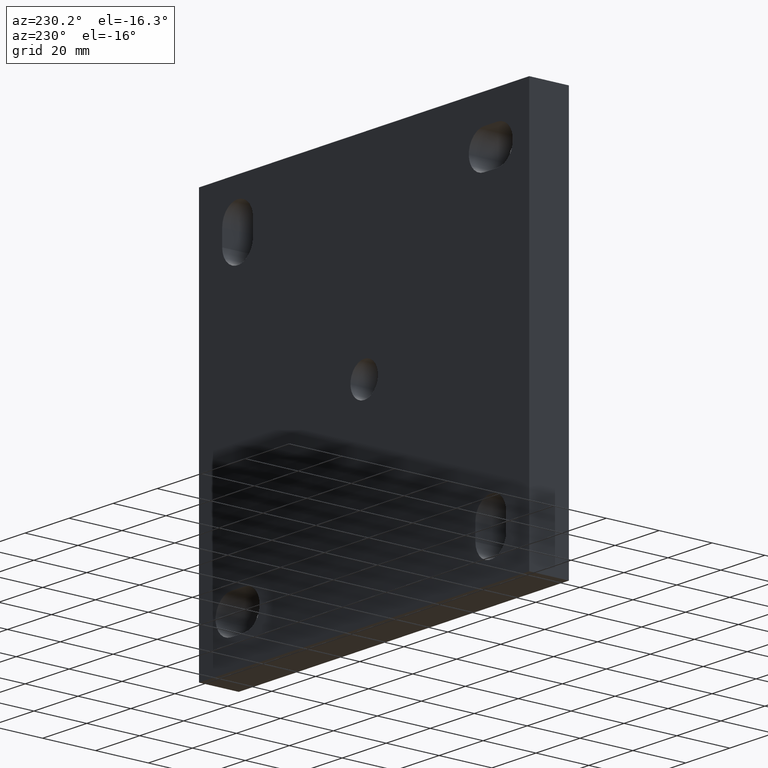
[diagram: clean part render]
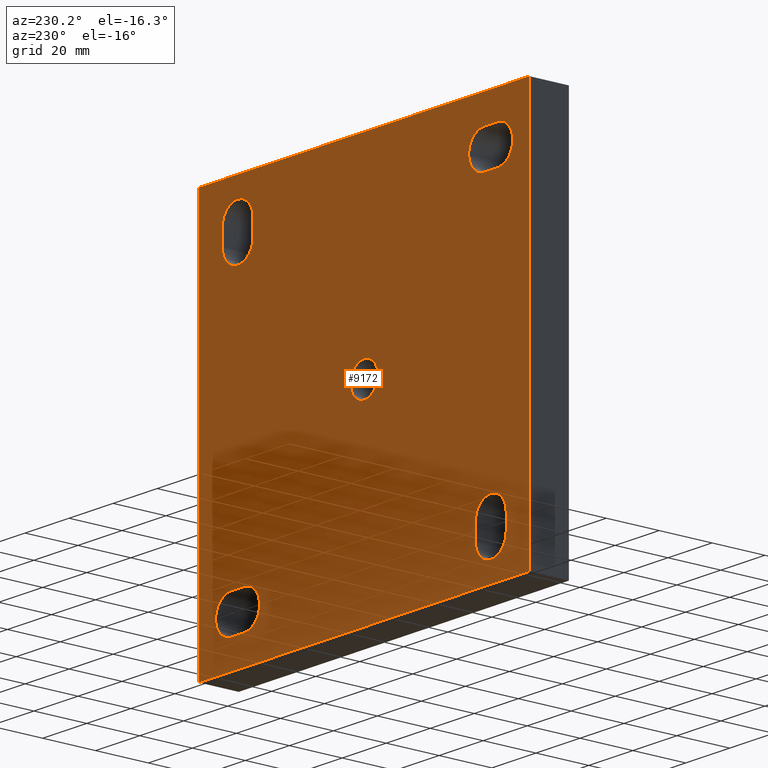
[diagram: same view with one face highlighted and labeled with its STEP entity id]
A machine part, auxiliary view. The second image highlights one B-rep face of the part: STEP entity #9172.
In plain terms, the highlighted planar face has unit normal (0, 1, 0).
Its self-contained STEP definition (entity closure, byte-faithful):
#42 = CARTESIAN_POINT ( 'NONE',  ( -64.49999999999998579, 15.00000000000000000, -60.50000000000006395 ) ) ;
#247 = VERTEX_POINT ( 'NONE', #8854 ) ;
#350 = AXIS2_PLACEMENT_3D ( 'NONE', #3906, #1746, #1791 ) ;
#384 = EDGE_CURVE ( 'NONE', #12676, #10742, #514, .T. ) ;
#432 = VECTOR ( 'NONE', #4711, 1000.000000000000000 ) ;
#512 = ORIENTED_EDGE ( 'NONE', *, *, #3276, .F. ) ;
#514 = CIRCLE ( 'NONE', #9266, 6.250000000000000000 ) ;
#552 = ORIENTED_EDGE ( 'NONE', *, *, #3141, .F. ) ;
#595 = EDGE_CURVE ( 'NONE', #8357, #5654, #4581, .T. ) ;
#635 = CARTESIAN_POINT ( 'NONE',  ( -64.49999999999998579, 15.00000000000000000, -60.50000000000006395 ) ) ;
#642 = LINE ( 'NONE', #4359, #8991 ) ;
#644 = DIRECTION ( 'NONE',  ( 0.000000000000000000, 1.000000000000000000, 0.000000000000000000 ) ) ;
#689 = CARTESIAN_POINT ( 'NONE',  ( -57.50000000000000711, 15.00000000000000000, -54.50000000000004263 ) ) ;
#770 = DIRECTION ( 'NONE',  ( 0.000000000000000000, 0.000000000000000000, 1.000000000000000000 ) ) ;
#825 = CARTESIAN_POINT ( 'NONE',  ( 74.99999999999998579, 15.00000000000000000, -74.99999999999998579 ) ) ;
#986 = FACE_OUTER_BOUND ( 'NONE', #1858, .T. ) ;
#1000 = CARTESIAN_POINT ( 'NONE',  ( -60.50000000000002132, 15.00000000000000000, 50.50000000000000000 ) ) ;
#1147 = DIRECTION ( 'NONE',  ( 0.000000000000000000, 0.000000000000000000, 1.000000000000000000 ) ) ;
#1294 = ORIENTED_EDGE ( 'NONE', *, *, #12868, .F. ) ;
#1378 = CARTESIAN_POINT ( 'NONE',  ( 7.654042494670957606E-16, 15.00000000000000000, -6.250000000000000000 ) ) ;
#1419 = DIRECTION ( 'NONE',  ( 0.000000000000000000, 0.000000000000000000, 1.000000000000000000 ) ) ;
#1451 = VERTEX_POINT ( 'NONE', #8279 ) ;
#1515 = VECTOR ( 'NONE', #9766, 1000.000000000000000 ) ;
#1610 = VECTOR ( 'NONE', #3838, 1000.000000000000000 ) ;
#1623 = CIRCLE ( 'NONE', #3732, 6.250000000000000000 ) ;
#1662 = VECTOR ( 'NONE', #13715, 1000.000000000000000 ) ;
#1746 = DIRECTION ( 'NONE',  ( 0.000000000000000000, 1.000000000000000000, 0.000000000000000000 ) ) ;
#1758 = ORIENTED_EDGE ( 'NONE', *, *, #3055, .F. ) ;
#1791 = DIRECTION ( 'NONE',  ( 0.000000000000000000, 0.000000000000000000, 1.000000000000000000 ) ) ;
#1802 = CIRCLE ( 'NONE', #2415, 6.999999999999992006 ) ;
#1817 = FACE_BOUND ( 'NONE', #8032, .T. ) ;
#1836 = EDGE_CURVE ( 'NONE', #9900, #4452, #2699, .T. ) ;
#1858 = EDGE_LOOP ( 'NONE', ( #2420, #7007, #4824, #5455 ) ) ;
#1873 = DIRECTION ( 'NONE',  ( 1.000000000000000000, 0.000000000000000000, 0.000000000000000000 ) ) ;
#2078 = DIRECTION ( 'NONE',  ( 0.000000000000000000, 1.000000000000000000, 0.000000000000000000 ) ) ;
#2123 = ORIENTED_EDGE ( 'NONE', *, *, #5261, .F. ) ;
#2218 = VERTEX_POINT ( 'NONE', #13383 ) ;
#2390 = CARTESIAN_POINT ( 'NONE',  ( -60.50000000000002132, 15.00000000000000000, 50.50000000000000000 ) ) ;
#2415 = AXIS2_PLACEMENT_3D ( 'NONE', #7295, #644, #11481 ) ;
#2420 = ORIENTED_EDGE ( 'NONE', *, *, #9621, .T. ) ;
#2474 = CARTESIAN_POINT ( 'NONE',  ( 57.50000000000000711, 15.00000000000000000, 67.50000000000001421 ) ) ;
#2561 = DIRECTION ( 'NONE',  ( 0.000000000000000000, 1.000000000000000000, 0.000000000000000000 ) ) ;
#2586 = VERTEX_POINT ( 'NONE', #10276 ) ;
#2655 = EDGE_CURVE ( 'NONE', #5153, #8745, #12394, .T. ) ;
#2699 = LINE ( 'NONE', #13717, #8490 ) ;
#2743 = ORIENTED_EDGE ( 'NONE', *, *, #3660, .F. ) ;
#2925 = CARTESIAN_POINT ( 'NONE',  ( 75.00000000000001421, 15.00000000000000000, 75.00000000000001421 ) ) ;
#3055 = EDGE_CURVE ( 'NONE', #9383, #8357, #7280, .T. ) ;
#3138 = VECTOR ( 'NONE', #6287, 1000.000000000000000 ) ;
#3141 = EDGE_CURVE ( 'NONE', #5654, #7626, #6935, .T. ) ;
#3198 = CARTESIAN_POINT ( 'NONE',  ( 54.50000000000000711, 15.00000000000000000, -64.50000000000002842 ) ) ;
#3276 = EDGE_CURVE ( 'NONE', #13581, #1451, #5909, .T. ) ;
#3322 = EDGE_CURVE ( 'NONE', #7626, #9383, #13044, .T. ) ;
#3485 = CARTESIAN_POINT ( 'NONE',  ( 54.50000000000000711, 15.00000000000000000, -50.50000000000003553 ) ) ;
#3660 = EDGE_CURVE ( 'NONE', #9752, #247, #3685, .T. ) ;
#3685 = LINE ( 'NONE', #13170, #13856 ) ;
#3732 = AXIS2_PLACEMENT_3D ( 'NONE', #11195, #6687, #1419 ) ;
#3796 = EDGE_LOOP ( 'NONE', ( #8413, #5933 ) ) ;
#3838 = DIRECTION ( 'NONE',  ( 0.000000000000000000, 0.000000000000000000, 1.000000000000000000 ) ) ;
#3846 = FACE_BOUND ( 'NONE', #13778, .T. ) ;
#3884 = CARTESIAN_POINT ( 'NONE',  ( 64.50000000000000000, 15.00000000000000000, 60.50000000000002842 ) ) ;
#3906 = CARTESIAN_POINT ( 'NONE',  ( -60.50000000000002132, 15.00000000000000000, 57.49999999999999289 ) ) ;
#3945 = VERTEX_POINT ( 'NONE', #4270 ) ;
#3989 = CARTESIAN_POINT ( 'NONE',  ( -75.00000000000001421, 15.00000000000000000, -74.99999999999998579 ) ) ;
#4062 = AXIS2_PLACEMENT_3D ( 'NONE', #4779, #9217, #11260 ) ;
#4109 = DIRECTION ( 'NONE',  ( 0.000000000000000000, -0.000000000000000000, 1.000000000000000000 ) ) ;
#4166 = CARTESIAN_POINT ( 'NONE',  ( 54.50000000000000711, 15.00000000000000000, -50.50000000000003553 ) ) ;
#4255 = DIRECTION ( 'NONE',  ( 1.000000000000000000, 0.000000000000000000, 0.000000000000000000 ) ) ;
#4270 = CARTESIAN_POINT ( 'NONE',  ( -57.50000000000000711, 15.00000000000000000, -47.50000000000005684 ) ) ;
#4359 = CARTESIAN_POINT ( 'NONE',  ( -74.99999999999998579, 15.00000000000000000, 75.00000000000001421 ) ) ;
#4408 = CARTESIAN_POINT ( 'NONE',  ( 54.50000000000000711, 15.00000000000000000, -64.50000000000002842 ) ) ;
#4439 = EDGE_LOOP ( 'NONE', ( #8878, #4646, #2123, #12522 ) ) ;
#4452 = VERTEX_POINT ( 'NONE', #7833 ) ;
#4538 = LINE ( 'NONE', #6061, #1662 ) ;
#4581 = CIRCLE ( 'NONE', #4062, 6.999999999999992006 ) ;
#4582 = DIRECTION ( 'NONE',  ( 0.000000000000000000, 0.000000000000000000, 1.000000000000000000 ) ) ;
#4600 = CARTESIAN_POINT ( 'NONE',  ( -54.50000000000000000, 15.00000000000000000, 50.50000000000000000 ) ) ;
#4645 = CIRCLE ( 'NONE', #350, 6.999999999999992006 ) ;
#4646 = ORIENTED_EDGE ( 'NONE', *, *, #8019, .F. ) ;
#4661 = EDGE_CURVE ( 'NONE', #10099, #5153, #1802, .T. ) ;
#4711 = DIRECTION ( 'NONE',  ( 1.850371707708594316E-16, 0.000000000000000000, 1.000000000000000000 ) ) ;
#4774 = CARTESIAN_POINT ( 'NONE',  ( -54.50000000000000000, 15.00000000000000000, 57.49999999999999289 ) ) ;
#4779 = CARTESIAN_POINT ( 'NONE',  ( 54.50000000000000711, 15.00000000000000000, -57.50000000000003553 ) ) ;
#4824 = ORIENTED_EDGE ( 'NONE', *, *, #11122, .T. ) ;
#4912 = CARTESIAN_POINT ( 'NONE',  ( 60.50000000000002842, 15.00000000000000000, -57.50000000000003553 ) ) ;
#4961 = DIRECTION ( 'NONE',  ( 0.000000000000000000, 0.000000000000000000, 1.000000000000000000 ) ) ;
#4980 = CIRCLE ( 'NONE', #5785, 6.999999999999978684 ) ;
#5111 = EDGE_CURVE ( 'NONE', #8745, #2586, #10991, .T. ) ;
#5153 = VERTEX_POINT ( 'NONE', #2474 ) ;
#5201 = VECTOR ( 'NONE', #8938, 1000.000000000000000 ) ;
#5261 = EDGE_CURVE ( 'NONE', #4452, #12299, #11828, .T. ) ;
#5286 = CARTESIAN_POINT ( 'NONE',  ( -50.50000000000002132, 15.00000000000000000, -54.50000000000004263 ) ) ;
#5431 = AXIS2_PLACEMENT_3D ( 'NONE', #689, #8204, #4961 ) ;
#5452 = DIRECTION ( 'NONE',  ( 1.000000000000000000, 0.000000000000000000, 0.000000000000000000 ) ) ;
#5455 = ORIENTED_EDGE ( 'NONE', *, *, #8924, .T. ) ;
#5654 = VERTEX_POINT ( 'NONE', #3485 ) ;
#5675 = CARTESIAN_POINT ( 'NONE',  ( -75.00000000000001421, 15.00000000000000000, -74.99999999999998579 ) ) ;
#5733 = EDGE_CURVE ( 'NONE', #10742, #12676, #1623, .T. ) ;
#5785 = AXIS2_PLACEMENT_3D ( 'NONE', #6349, #12750, #6445 ) ;
#5909 = LINE ( 'NONE', #42, #8805 ) ;
#5933 = ORIENTED_EDGE ( 'NONE', *, *, #5733, .F. ) ;
#5998 = DIRECTION ( 'NONE',  ( 0.000000000000000000, 0.000000000000000000, 1.000000000000000000 ) ) ;
#6047 = DIRECTION ( 'NONE',  ( 0.000000000000000000, 1.000000000000000000, 0.000000000000000000 ) ) ;
#6061 = CARTESIAN_POINT ( 'NONE',  ( 74.99999999999998579, 15.00000000000000000, -74.99999999999998579 ) ) ;
#6287 = DIRECTION ( 'NONE',  ( -1.000000000000000000, -0.000000000000000000, -0.000000000000000000 ) ) ;
#6349 = CARTESIAN_POINT ( 'NONE',  ( -57.50000000000000711, 15.00000000000000000, -60.50000000000007105 ) ) ;
#6445 = DIRECTION ( 'NONE',  ( 0.000000000000000000, 0.000000000000000000, 1.000000000000000000 ) ) ;
#6687 = DIRECTION ( 'NONE',  ( 0.000000000000000000, 1.000000000000000000, 0.000000000000000000 ) ) ;
#6708 = CARTESIAN_POINT ( 'NONE',  ( 0.000000000000000000, 15.00000000000000000, 6.250000000000000000 ) ) ;
#6711 = AXIS2_PLACEMENT_3D ( 'NONE', #10107, #11198, #7962 ) ;
#6762 = EDGE_CURVE ( 'NONE', #1451, #3945, #7220, .T. ) ;
#6935 = LINE ( 'NONE', #4166, #10664 ) ;
#7007 = ORIENTED_EDGE ( 'NONE', *, *, #12042, .T. ) ;
#7085 = DIRECTION ( 'NONE',  ( 0.000000000000000000, 1.000000000000000000, 0.000000000000000000 ) ) ;
#7121 = EDGE_CURVE ( 'NONE', #247, #13581, #4980, .T. ) ;
#7206 = LINE ( 'NONE', #9230, #1610 ) ;
#7220 = CIRCLE ( 'NONE', #6711, 6.999999999999985789 ) ;
#7280 = LINE ( 'NONE', #4408, #1515 ) ;
#7295 = CARTESIAN_POINT ( 'NONE',  ( 57.50000000000000711, 15.00000000000000000, 60.50000000000002842 ) ) ;
#7313 = EDGE_CURVE ( 'NONE', #2218, #10099, #7206, .T. ) ;
#7417 = CARTESIAN_POINT ( 'NONE',  ( 57.50000000000000711, 15.00000000000000000, 54.50000000000000000 ) ) ;
#7438 = FACE_BOUND ( 'NONE', #3796, .T. ) ;
#7626 = VERTEX_POINT ( 'NONE', #12825 ) ;
#7680 = ORIENTED_EDGE ( 'NONE', *, *, #3322, .F. ) ;
#7782 = FACE_BOUND ( 'NONE', #10782, .T. ) ;
#7820 = DIRECTION ( 'NONE',  ( -0.000000000000000000, -0.000000000000000000, -1.000000000000000000 ) ) ;
#7833 = CARTESIAN_POINT ( 'NONE',  ( -54.50000000000000000, 15.00000000000000000, 64.49999999999998579 ) ) ;
#7842 = ORIENTED_EDGE ( 'NONE', *, *, #7121, .F. ) ;
#7962 = DIRECTION ( 'NONE',  ( 0.000000000000000000, 0.000000000000000000, 1.000000000000000000 ) ) ;
#8009 = ORIENTED_EDGE ( 'NONE', *, *, #6762, .F. ) ;
#8019 = EDGE_CURVE ( 'NONE', #12299, #12074, #12721, .T. ) ;
#8032 = EDGE_LOOP ( 'NONE', ( #13080, #13453, #10760, #13298, #9825 ) ) ;
#8167 = AXIS2_PLACEMENT_3D ( 'NONE', #4912, #13266, #4582 ) ;
#8179 = CARTESIAN_POINT ( 'NONE',  ( 57.50000000000000711, 15.00000000000000000, 60.50000000000002842 ) ) ;
#8204 = DIRECTION ( 'NONE',  ( 0.000000000000000000, 1.000000000000000000, 0.000000000000000000 ) ) ;
#8279 = CARTESIAN_POINT ( 'NONE',  ( -64.49999999999998579, 15.00000000000000000, -54.50000000000004974 ) ) ;
#8322 = DIRECTION ( 'NONE',  ( 0.000000000000000000, 1.000000000000000000, 0.000000000000000000 ) ) ;
#8357 = VERTEX_POINT ( 'NONE', #3198 ) ;
#8413 = ORIENTED_EDGE ( 'NONE', *, *, #384, .F. ) ;
#8457 = CARTESIAN_POINT ( 'NONE',  ( 0.000000000000000000, 15.00000000000000000, 0.000000000000000000 ) ) ;
#8490 = VECTOR ( 'NONE', #1873, 1000.000000000000000 ) ;
#8605 = LINE ( 'NONE', #5675, #432 ) ;
#8745 = VERTEX_POINT ( 'NONE', #3884 ) ;
#8805 = VECTOR ( 'NONE', #1147, 1000.000000000000000 ) ;
#8854 = CARTESIAN_POINT ( 'NONE',  ( -50.50000000000002132, 15.00000000000000000, -60.50000000000006395 ) ) ;
#8878 = ORIENTED_EDGE ( 'NONE', *, *, #12884, .F. ) ;
#8900 = VERTEX_POINT ( 'NONE', #10974 ) ;
#8924 = EDGE_CURVE ( 'NONE', #8900, #12916, #642, .T. ) ;
#8938 = DIRECTION ( 'NONE',  ( -0.000000000000000000, -0.000000000000000000, -1.000000000000000000 ) ) ;
#8991 = VECTOR ( 'NONE', #5452, 1000.000000000000000 ) ;
#9172 = ADVANCED_FACE ( 'NONE', ( #7782, #1817, #13035, #3846, #7438, #986 ), #13970, .T. ) ;
#9217 = DIRECTION ( 'NONE',  ( 0.000000000000000000, 1.000000000000000000, 0.000000000000000000 ) ) ;
#9230 = CARTESIAN_POINT ( 'NONE',  ( 50.50000000000001421, 15.00000000000000000, 54.50000000000000711 ) ) ;
#9266 = AXIS2_PLACEMENT_3D ( 'NONE', #10458, #7085, #10504 ) ;
#9298 = CIRCLE ( 'NONE', #13330, 6.999999999999992006 ) ;
#9366 = AXIS2_PLACEMENT_3D ( 'NONE', #8179, #6047, #5998 ) ;
#9383 = VERTEX_POINT ( 'NONE', #10057 ) ;
#9495 = VECTOR ( 'NONE', #12906, 1000.000000000000000 ) ;
#9621 = EDGE_CURVE ( 'NONE', #12916, #11921, #4538, .T. ) ;
#9752 = VERTEX_POINT ( 'NONE', #5286 ) ;
#9766 = DIRECTION ( 'NONE',  ( -1.000000000000000000, -0.000000000000000000, -0.000000000000000000 ) ) ;
#9825 = ORIENTED_EDGE ( 'NONE', *, *, #7313, .F. ) ;
#9900 = VERTEX_POINT ( 'NONE', #11037 ) ;
#10057 = CARTESIAN_POINT ( 'NONE',  ( 60.50000000000001421, 15.00000000000000000, -64.50000000000002842 ) ) ;
#10099 = VERTEX_POINT ( 'NONE', #12461 ) ;
#10107 = CARTESIAN_POINT ( 'NONE',  ( -57.50000000000000711, 15.00000000000000000, -54.50000000000004263 ) ) ;
#10213 = EDGE_CURVE ( 'NONE', #2586, #2218, #9298, .T. ) ;
#10276 = CARTESIAN_POINT ( 'NONE',  ( 64.50000000000000000, 15.00000000000000000, 54.50000000000000711 ) ) ;
#10451 = LINE ( 'NONE', #3989, #3138 ) ;
#10458 = CARTESIAN_POINT ( 'NONE',  ( 0.000000000000000000, 15.00000000000000000, 0.000000000000000000 ) ) ;
#10504 = DIRECTION ( 'NONE',  ( 0.000000000000000000, 0.000000000000000000, 1.000000000000000000 ) ) ;
#10664 = VECTOR ( 'NONE', #4255, 1000.000000000000000 ) ;
#10742 = VERTEX_POINT ( 'NONE', #1378 ) ;
#10760 = ORIENTED_EDGE ( 'NONE', *, *, #2655, .F. ) ;
#10782 = EDGE_LOOP ( 'NONE', ( #7842, #2743, #1294, #8009, #512 ) ) ;
#10974 = CARTESIAN_POINT ( 'NONE',  ( -74.99999999999998579, 15.00000000000000000, 75.00000000000001421 ) ) ;
#10991 = LINE ( 'NONE', #13090, #5201 ) ;
#11037 = CARTESIAN_POINT ( 'NONE',  ( -60.50000000000002132, 15.00000000000000000, 64.49999999999998579 ) ) ;
#11122 = EDGE_CURVE ( 'NONE', #12367, #8900, #8605, .T. ) ;
#11195 = CARTESIAN_POINT ( 'NONE',  ( 0.000000000000000000, 15.00000000000000000, 0.000000000000000000 ) ) ;
#11198 = DIRECTION ( 'NONE',  ( 0.000000000000000000, 1.000000000000000000, 0.000000000000000000 ) ) ;
#11260 = DIRECTION ( 'NONE',  ( 0.000000000000000000, 0.000000000000000000, 1.000000000000000000 ) ) ;
#11306 = CIRCLE ( 'NONE', #5431, 6.999999999999985789 ) ;
#11481 = DIRECTION ( 'NONE',  ( 0.000000000000000000, 0.000000000000000000, 1.000000000000000000 ) ) ;
#11542 = CARTESIAN_POINT ( 'NONE',  ( -75.00000000000001421, 15.00000000000000000, -74.99999999999998579 ) ) ;
#11828 = CIRCLE ( 'NONE', #13134, 6.999999999999992006 ) ;
#11921 = VERTEX_POINT ( 'NONE', #825 ) ;
#12042 = EDGE_CURVE ( 'NONE', #11921, #12367, #10451, .T. ) ;
#12074 = VERTEX_POINT ( 'NONE', #2390 ) ;
#12299 = VERTEX_POINT ( 'NONE', #4600 ) ;
#12367 = VERTEX_POINT ( 'NONE', #11542 ) ;
#12394 = CIRCLE ( 'NONE', #9366, 6.999999999999992006 ) ;
#12401 = DIRECTION ( 'NONE',  ( 0.000000000000000000, 0.000000000000000000, 1.000000000000000000 ) ) ;
#12441 = ORIENTED_EDGE ( 'NONE', *, *, #595, .F. ) ;
#12461 = CARTESIAN_POINT ( 'NONE',  ( 50.50000000000001421, 15.00000000000000000, 60.50000000000002132 ) ) ;
#12522 = ORIENTED_EDGE ( 'NONE', *, *, #1836, .F. ) ;
#12676 = VERTEX_POINT ( 'NONE', #6708 ) ;
#12721 = LINE ( 'NONE', #1000, #9495 ) ;
#12750 = DIRECTION ( 'NONE',  ( 0.000000000000000000, 1.000000000000000000, 0.000000000000000000 ) ) ;
#12825 = CARTESIAN_POINT ( 'NONE',  ( 60.50000000000001421, 15.00000000000000000, -50.50000000000004263 ) ) ;
#12868 = EDGE_CURVE ( 'NONE', #3945, #9752, #11306, .T. ) ;
#12884 = EDGE_CURVE ( 'NONE', #12074, #9900, #4645, .T. ) ;
#12906 = DIRECTION ( 'NONE',  ( -1.000000000000000000, -0.000000000000000000, -0.000000000000000000 ) ) ;
#12916 = VERTEX_POINT ( 'NONE', #2925 ) ;
#13035 = FACE_BOUND ( 'NONE', #4439, .T. ) ;
#13044 = CIRCLE ( 'NONE', #8167, 6.999999999999992006 ) ;
#13080 = ORIENTED_EDGE ( 'NONE', *, *, #10213, .F. ) ;
#13090 = CARTESIAN_POINT ( 'NONE',  ( 64.50000000000000000, 15.00000000000000000, 54.50000000000000711 ) ) ;
#13134 = AXIS2_PLACEMENT_3D ( 'NONE', #4774, #2561, #12401 ) ;
#13170 = CARTESIAN_POINT ( 'NONE',  ( -50.50000000000002132, 15.00000000000000000, -60.50000000000006395 ) ) ;
#13266 = DIRECTION ( 'NONE',  ( 0.000000000000000000, 1.000000000000000000, 0.000000000000000000 ) ) ;
#13298 = ORIENTED_EDGE ( 'NONE', *, *, #4661, .F. ) ;
#13330 = AXIS2_PLACEMENT_3D ( 'NONE', #7417, #8322, #770 ) ;
#13383 = CARTESIAN_POINT ( 'NONE',  ( 50.50000000000001421, 15.00000000000000000, 54.50000000000000711 ) ) ;
#13453 = ORIENTED_EDGE ( 'NONE', *, *, #5111, .F. ) ;
#13581 = VERTEX_POINT ( 'NONE', #635 ) ;
#13715 = DIRECTION ( 'NONE',  ( -1.850371707708594316E-16, -0.000000000000000000, -1.000000000000000000 ) ) ;
#13717 = CARTESIAN_POINT ( 'NONE',  ( -60.50000000000002132, 15.00000000000000000, 64.49999999999998579 ) ) ;
#13778 = EDGE_LOOP ( 'NONE', ( #12441, #1758, #7680, #552 ) ) ;
#13856 = VECTOR ( 'NONE', #7820, 1000.000000000000000 ) ;
#13937 = AXIS2_PLACEMENT_3D ( 'NONE', #8457, #2078, #4109 ) ;
#13970 = PLANE ( 'NONE',  #13937 ) ;